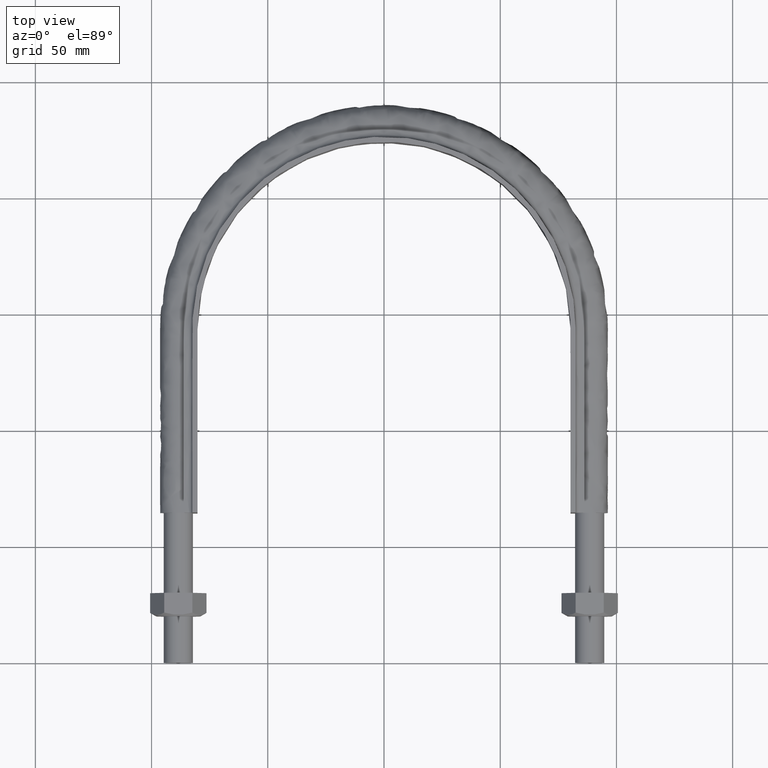
[diagram: clean part render]
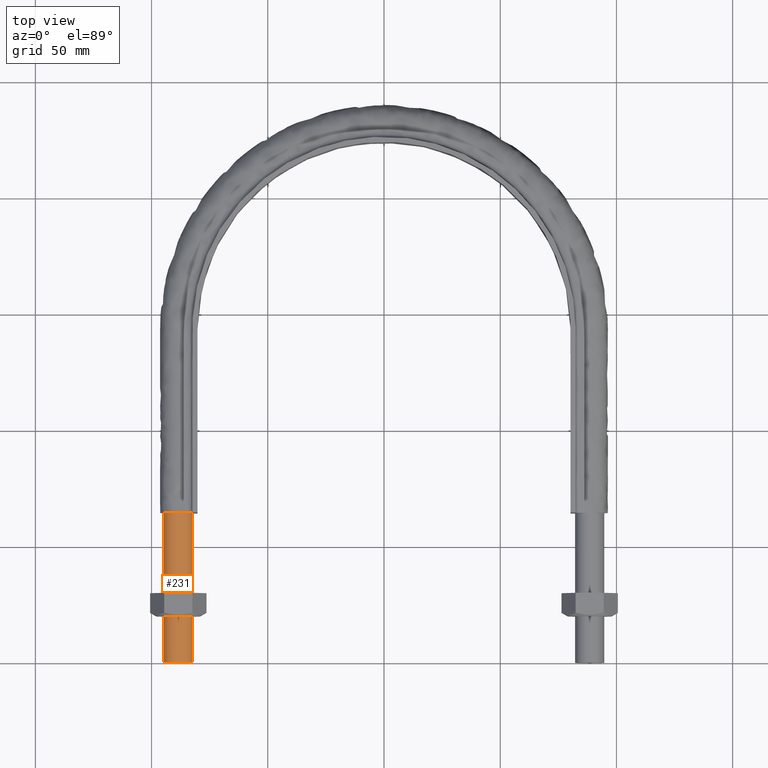
[diagram: same view with one face highlighted and labeled with its STEP entity id]
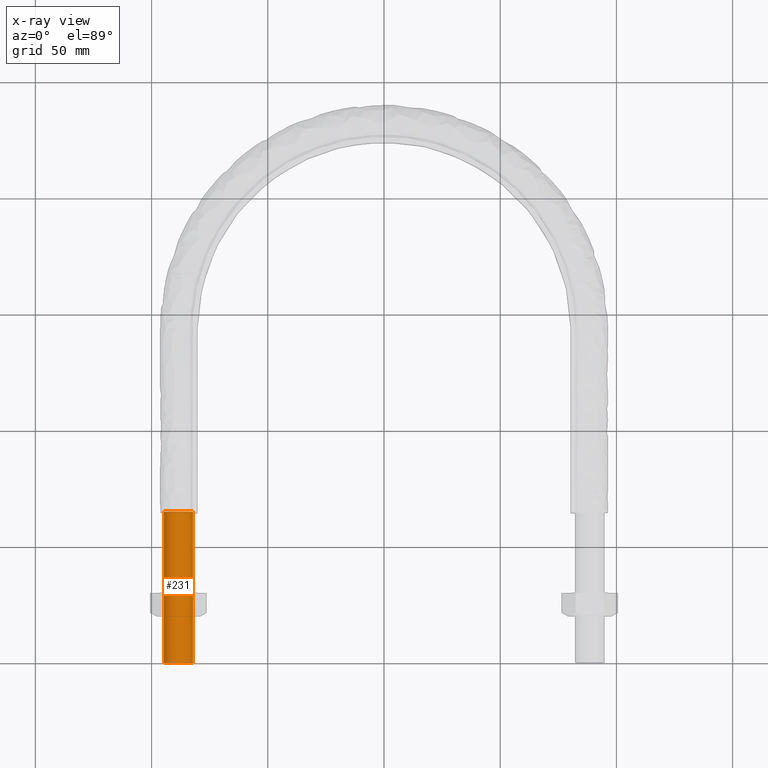
[diagram: x-ray of the same camera — body ghosted, the highlighted face saturated]
A machine part, top view. The second image highlights one B-rep face of the part: STEP entity #231.
The next image is the same camera in x-ray: the body ghosted, the highlighted face saturated — about 0% of this face is hidden behind the body in this view.
In plain terms, the highlighted cylindrical surface (bore or boss wall) has radius 6.25 mm, axis along (0, 1, -0).
Its self-contained STEP definition (entity closure, byte-faithful):
#231 = ADVANCED_FACE( '', ( #288, #289 ), #290, .T. );
#288 = FACE_OUTER_BOUND( '', #1292, .T. );
#289 = FACE_OUTER_BOUND( '', #1293, .T. );
#290 = CYLINDRICAL_SURFACE( '', #1294, 6.25000000000001 );
#1292 = EDGE_LOOP( '', ( #1437 ) );
#1293 = EDGE_LOOP( '', ( #1438 ) );
#1294 = AXIS2_PLACEMENT_3D( '', #1439, #1440, #1441 );
#1437 = ORIENTED_EDGE( '', *, *, #1630, .T. );
#1438 = ORIENTED_EDGE( '', *, *, #1629, .F. );
#1439 = CARTESIAN_POINT( '', ( -88.5000000000000, 65.0000000000000, -1.98998532496136E-014 ) );
#1440 = DIRECTION( '', ( 2.44921270764476E-016, 1.00000000000000, -3.06151588455594E-016 ) );
#1441 = DIRECTION( '', ( 1.00000000000000, -2.44921270764475E-016, 0.000000000000000 ) );
#1629 = EDGE_CURVE( '', #1709, #1709, #1710, .T. );
#1630 = EDGE_CURVE( '', #1711, #1711, #1712, .T. );
#1709 = VERTEX_POINT( '', #1999 );
#1710 = CIRCLE( '', #2000, 6.25000000000001 );
#1711 = VERTEX_POINT( '', #2001 );
#1712 = CIRCLE( '', #2002, 6.25000000000001 );
#1999 = CARTESIAN_POINT( '', ( -82.2500000000000, 2.01447745203781E-014, 0.000000000000000 ) );
#2000 = AXIS2_PLACEMENT_3D( '', #2251, #2252, #2253 );
#2001 = CARTESIAN_POINT( '', ( -82.2500000000000, 65.0000000000000, -1.98998532496136E-014 ) );
#2002 = AXIS2_PLACEMENT_3D( '', #2254, #2255, #2256 );
#2251 = CARTESIAN_POINT( '', ( -88.5000000000000, 2.16755324626561E-014, 0.000000000000000 ) );
#2252 = DIRECTION( '', ( -2.44921270764476E-016, -1.00000000000000, 3.06151588455594E-016 ) );
#2253 = DIRECTION( '', ( 1.00000000000000, -2.44921270764475E-016, 0.000000000000000 ) );
#2254 = CARTESIAN_POINT( '', ( -88.5000000000000, 65.0000000000000, -1.98998532496136E-014 ) );
#2255 = DIRECTION( '', ( -2.44921270764476E-016, -1.00000000000000, 3.06151588455594E-016 ) );
#2256 = DIRECTION( '', ( 1.00000000000000, -2.44921270764475E-016, 0.000000000000000 ) );